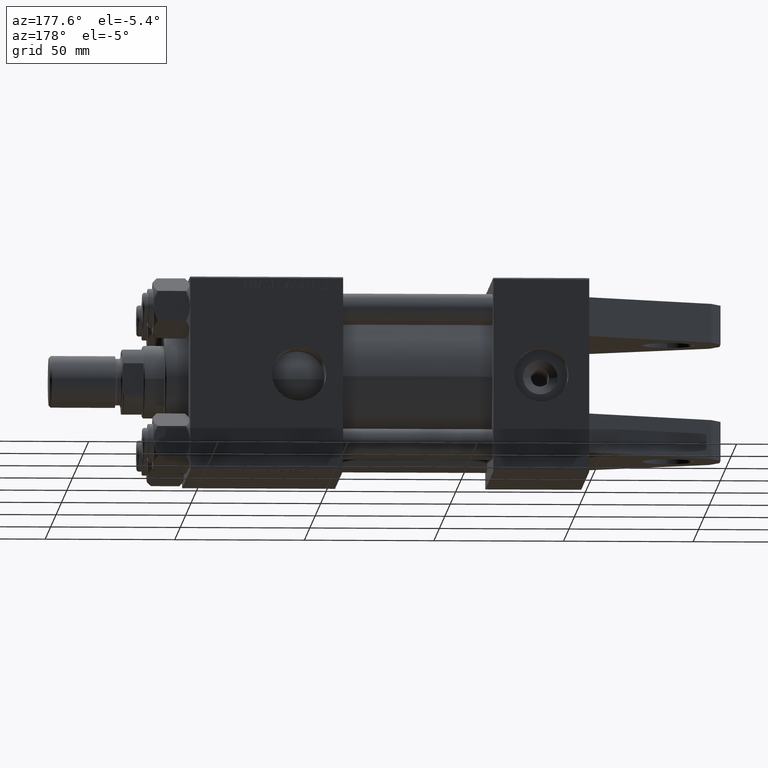
[diagram: clean part render]
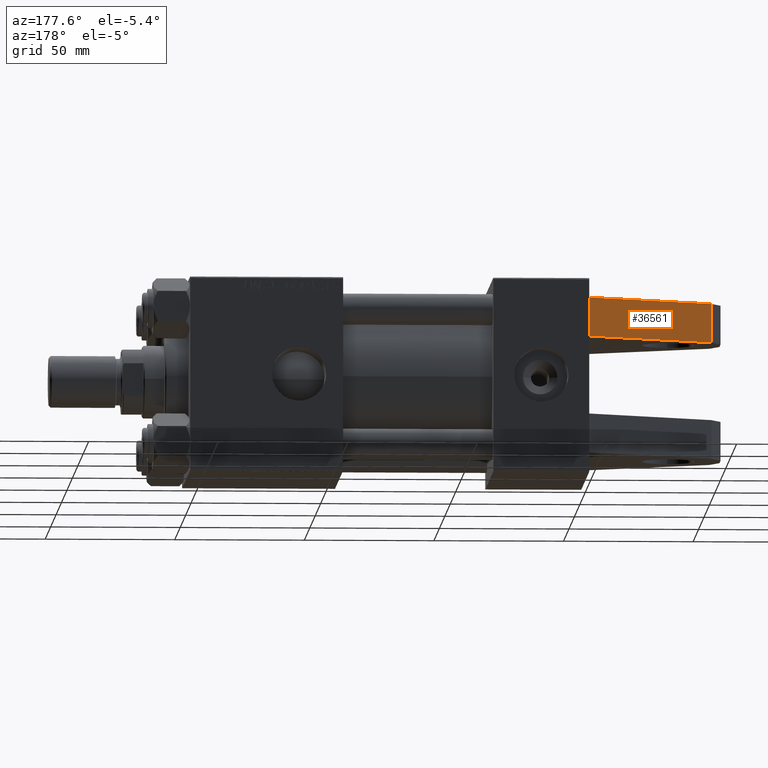
[diagram: same view with one face highlighted and labeled with its STEP entity id]
A machine part, auxiliary view. The second image highlights one B-rep face of the part: STEP entity #36561.
In plain terms, the highlighted planar face has unit normal (-0.4608, 0.8875, 0).
Its self-contained STEP definition (entity closure, byte-faithful):
#338 = VERTEX_POINT ( 'NONE', #5398 ) ;
#2844 = ORIENTED_EDGE ( 'NONE', *, *, #44350, .T. ) ;
#3020 = VECTOR ( 'NONE', #20946, 1000.000000000000000 ) ;
#3605 = DIRECTION ( 'NONE',  ( 0.8875055616531780656, 0.000000000000000000, 0.4607970030660757943 ) ) ;
#4410 = ORIENTED_EDGE ( 'NONE', *, *, #16773, .F. ) ;
#4424 = LINE ( 'NONE', #21191, #3020 ) ;
#5398 = CARTESIAN_POINT ( 'NONE',  ( 0.000000000000000000, -30.00000000000001421, 37.49999999999999289 ) ) ;
#9153 = VECTOR ( 'NONE', #25207, 1000.000000000000114 ) ;
#11799 = CARTESIAN_POINT ( 'NONE',  ( 0.000000000000000000, -15.00000000000000000, 37.49999999999999289 ) ) ;
#13136 = CARTESIAN_POINT ( 'NONE',  ( -48.15077811301358679, -15.00000000000000000, 12.49989272354909353 ) ) ;
#16773 = EDGE_CURVE ( 'NONE', #36630, #32723, #33075, .T. ) ;
#16963 = VECTOR ( 'NONE', #3605, 1000.000000000000114 ) ;
#17001 = EDGE_CURVE ( 'NONE', #338, #32723, #23600, .T. ) ;
#20138 = CARTESIAN_POINT ( 'NONE',  ( -48.15077811301358679, -30.00000000000000000, 12.49989272354909353 ) ) ;
#20946 = DIRECTION ( 'NONE',  ( -0.000000000000000000, 1.000000000000000000, -0.000000000000000000 ) ) ;
#21191 = CARTESIAN_POINT ( 'NONE',  ( -48.15077811301358679, -30.00000000000000000, 12.49989272354909353 ) ) ;
#23600 = LINE ( 'NONE', #39610, #48500 ) ;
#25207 = DIRECTION ( 'NONE',  ( 0.8875055616531780656, 0.000000000000000000, 0.4607970030660757943 ) ) ;
#25857 = DIRECTION ( 'NONE',  ( 0.8875055616531780656, 0.000000000000000000, 0.4607970030660758498 ) ) ;
#27982 = CARTESIAN_POINT ( 'NONE',  ( -48.15077811301358679, -30.00000000000000000, 12.49989272354909353 ) ) ;
#30589 = PLANE ( 'NONE',  #41928 ) ;
#32723 = VERTEX_POINT ( 'NONE', #11799 ) ;
#33075 = LINE ( 'NONE', #13136, #9153 ) ;
#34265 = FACE_OUTER_BOUND ( 'NONE', #37936, .T. ) ;
#35039 = CARTESIAN_POINT ( 'NONE',  ( -48.15077811301358679, -15.00000000000000000, 12.49989272354909353 ) ) ;
#35674 = DIRECTION ( 'NONE',  ( -0.000000000000000000, 1.000000000000000000, -0.000000000000000000 ) ) ;
#35744 = ORIENTED_EDGE ( 'NONE', *, *, #49440, .F. ) ;
#36561 = ADVANCED_FACE ( 'NONE', ( #34265 ), #30589, .T. ) ;
#36630 = VERTEX_POINT ( 'NONE', #35039 ) ;
#37463 = ORIENTED_EDGE ( 'NONE', *, *, #17001, .T. ) ;
#37936 = EDGE_LOOP ( 'NONE', ( #4410, #35744, #2844, #37463 ) ) ;
#38460 = DIRECTION ( 'NONE',  ( -0.4607970030660758498, 0.000000000000000000, 0.8875055616531780656 ) ) ;
#39610 = CARTESIAN_POINT ( 'NONE',  ( 0.000000000000000000, -30.00000000000000000, 37.49999999999999289 ) ) ;
#41928 = AXIS2_PLACEMENT_3D ( 'NONE', #42397, #38460, #25857 ) ;
#42397 = CARTESIAN_POINT ( 'NONE',  ( -48.15077811301358679, -30.00000000000000000, 12.49989272354909353 ) ) ;
#42766 = VERTEX_POINT ( 'NONE', #27982 ) ;
#44350 = EDGE_CURVE ( 'NONE', #42766, #338, #48179, .T. ) ;
#48179 = LINE ( 'NONE', #20138, #16963 ) ;
#48500 = VECTOR ( 'NONE', #35674, 1000.000000000000000 ) ;
#49440 = EDGE_CURVE ( 'NONE', #42766, #36630, #4424, .T. ) ;